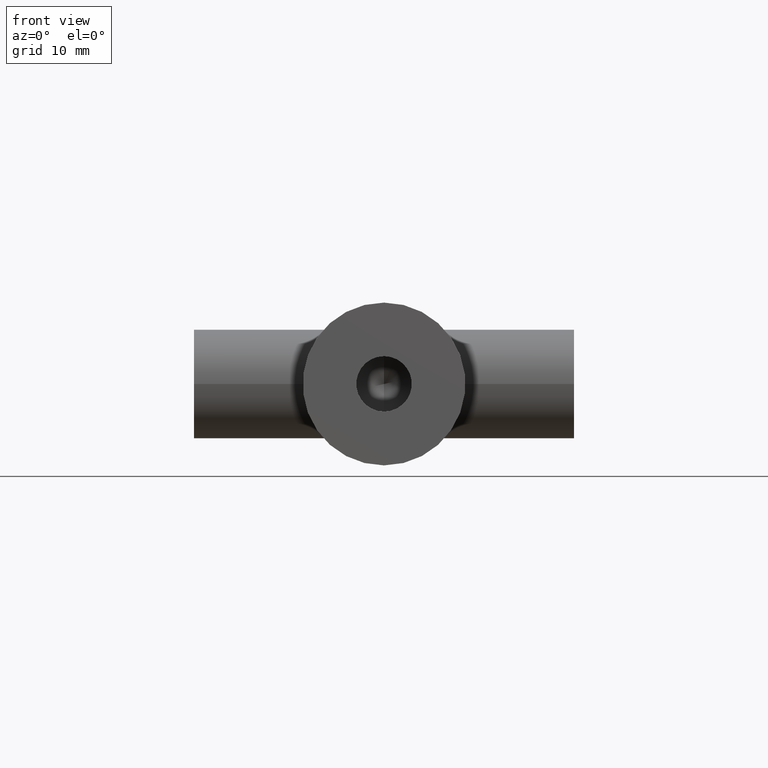
[diagram: clean part render]
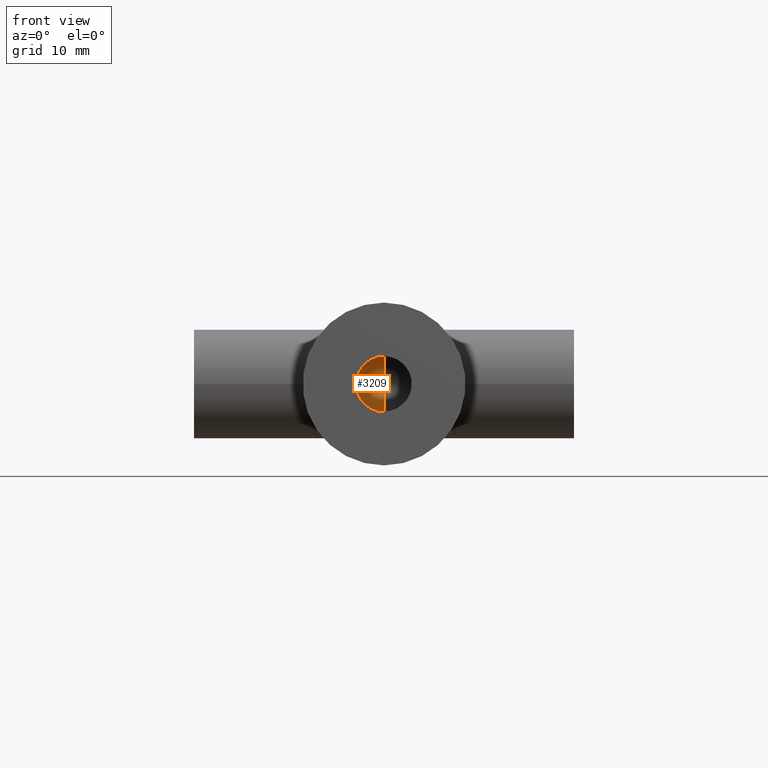
[diagram: same view with one face highlighted and labeled with its STEP entity id]
A machine part, front view. The second image highlights one B-rep face of the part: STEP entity #3209.
In plain terms, the highlighted conical surface has half-angle 59 deg.
Its self-contained STEP definition (entity closure, byte-faithful):
#638 = CARTESIAN_POINT ( 'NONE',  ( 0.0000000000000000000, 8.000000000000000000, -1.776356839400250900E-015 ) ) ;
#740 = CIRCLE ( 'NONE', #2480, 2.552699999999998400 ) ;
#813 = EDGE_CURVE ( 'NONE', #2193, #2106, #740, .T. ) ;
#900 = DIRECTION ( 'NONE',  ( 0.0000000000000000000, -1.000000000000000000, 2.220446049250313600E-016 ) ) ;
#1030 = EDGE_CURVE ( 'NONE', #3189, #2106, #3827, .T. ) ;
#1056 = CARTESIAN_POINT ( 'NONE',  ( -3.126155884183447800E-016, 8.000000000000000000, -2.552700000000000200 ) ) ;
#1101 = DIRECTION ( 'NONE',  ( -1.049727191138618600E-016, -0.5150380749100547100, -0.8571673007021120000 ) ) ;
#1131 = ORIENTED_EDGE ( 'NONE', *, *, #813, .T. ) ;
#1365 = ORIENTED_EDGE ( 'NONE', *, *, #3187, .T. ) ;
#1416 = CARTESIAN_POINT ( 'NONE',  ( 0.0000000000000000000, 8.000000000000000000, 2.552699999999996600 ) ) ;
#1454 = CARTESIAN_POINT ( 'NONE',  ( 0.0000000000000000000, 8.000000000000000000, 2.552699999999996600 ) ) ;
#1492 = CARTESIAN_POINT ( 'NONE',  ( 2.328538808395384300E-015, 9.533816902191652800, -2.116932607474731800E-015 ) ) ;
#1543 = CONICAL_SURFACE ( 'NONE', #3006, 2.552699999999998400, 1.029744258676653900 ) ;
#1590 = ORIENTED_EDGE ( 'NONE', *, *, #1030, .F. ) ;
#1862 = EDGE_LOOP ( 'NONE', ( #1590, #1365, #1131 ) ) ;
#1877 = DIRECTION ( 'NONE',  ( 0.0000000000000000000, 0.0000000000000000000, 1.000000000000000000 ) ) ;
#1939 = LINE ( 'NONE', #1454, #2039 ) ;
#2039 = VECTOR ( 'NONE', #2956, 1000.000000000000100 ) ;
#2106 = VERTEX_POINT ( 'NONE', #1056 ) ;
#2193 = VERTEX_POINT ( 'NONE', #1416 ) ;
#2480 = AXIS2_PLACEMENT_3D ( 'NONE', #3415, #3687, #1877 ) ;
#2678 = DIRECTION ( 'NONE',  ( 0.0000000000000000000, 0.0000000000000000000, 1.000000000000000000 ) ) ;
#2836 = CARTESIAN_POINT ( 'NONE',  ( -3.126155884183446800E-016, 8.000000000000000000, -2.552700000000000200 ) ) ;
#2956 = DIRECTION ( 'NONE',  ( 0.0000000000000000000, -0.5150380749100546000, 0.8571673007021120000 ) ) ;
#3006 = AXIS2_PLACEMENT_3D ( 'NONE', #638, #900, #2678 ) ;
#3187 = EDGE_CURVE ( 'NONE', #3189, #2193, #1939, .T. ) ;
#3189 = VERTEX_POINT ( 'NONE', #1492 ) ;
#3209 = ADVANCED_FACE ( 'NONE', ( #3378 ), #1543, .F. ) ;
#3378 = FACE_OUTER_BOUND ( 'NONE', #1862, .T. ) ;
#3415 = CARTESIAN_POINT ( 'NONE',  ( 0.0000000000000000000, 8.000000000000000000, -1.776356839400250900E-015 ) ) ;
#3687 = DIRECTION ( 'NONE',  ( 0.0000000000000000000, -1.000000000000000000, 2.220446049250313600E-016 ) ) ;
#3727 = VECTOR ( 'NONE', #1101, 1000.000000000000100 ) ;
#3827 = LINE ( 'NONE', #2836, #3727 ) ;